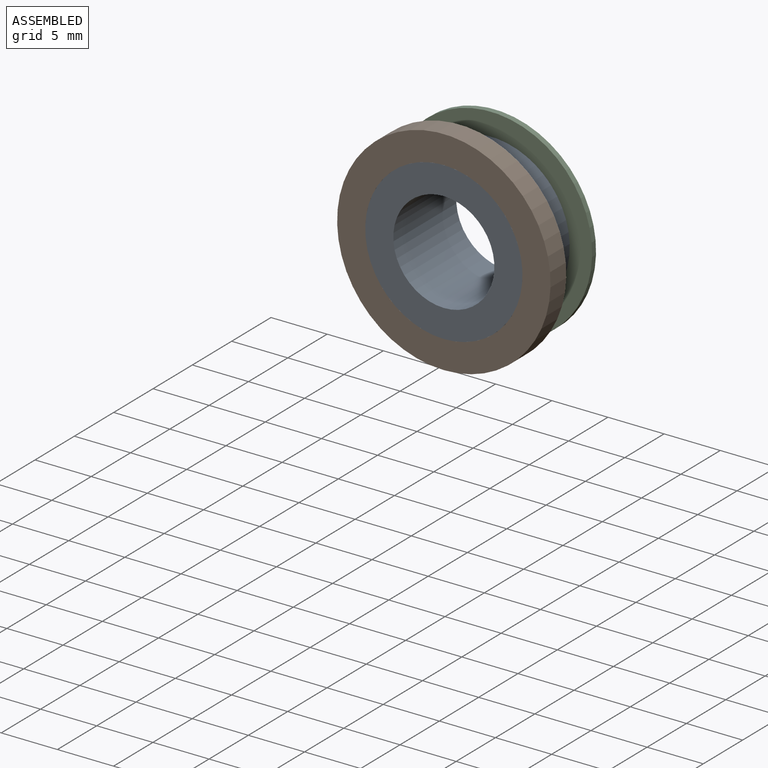
[diagram: assembled view]
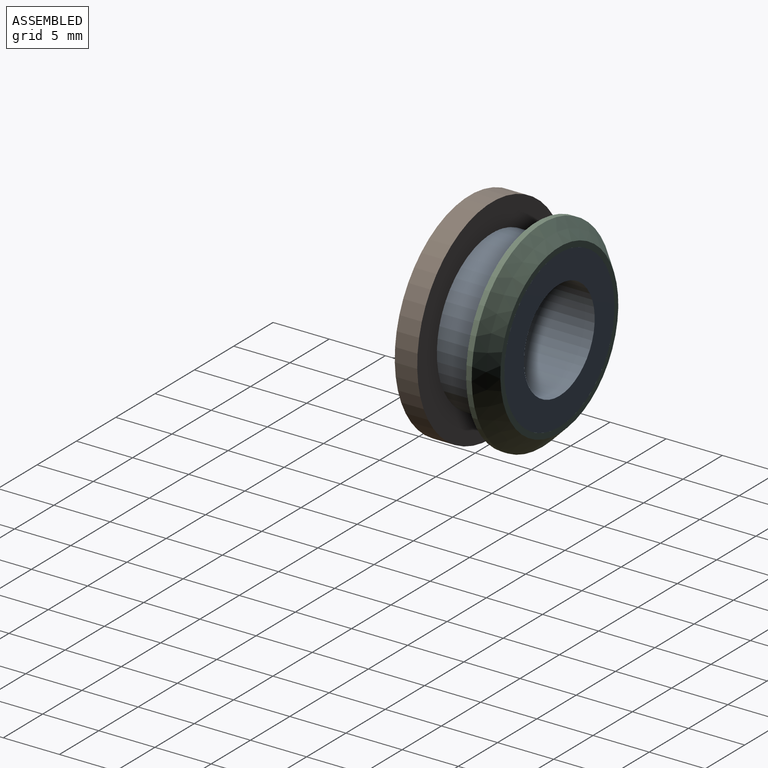
[diagram: assembled view, second angle]
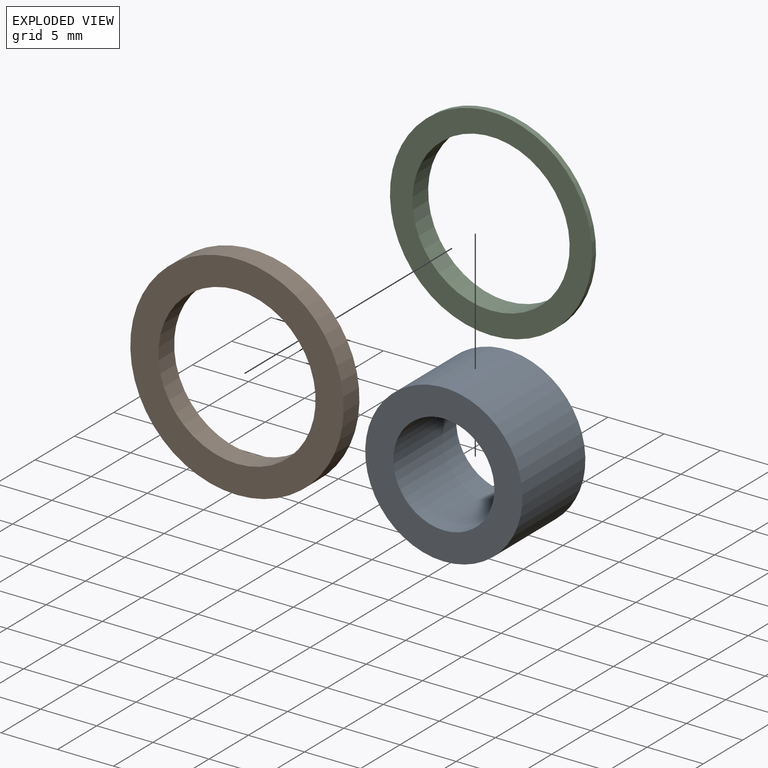
[diagram: exploded view]
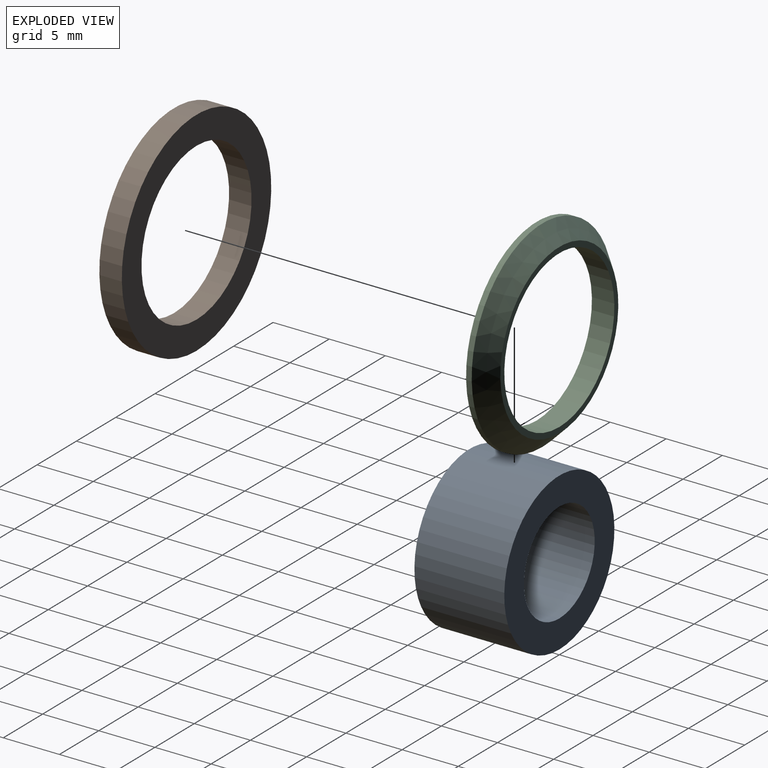
[diagram: exploded view, second angle]
ASSEMBLY  parts=3 mates=2
PART A: 4 faces, bbox 14x8x14 mm
  f0: cylinder r=4.5mm len=9mm, axis (0,1,0), area 226.2mm2, adj f2,f3
  f1: cylinder r=7mm len=14mm, axis (0,1,0), area 351.9mm2, adj f2,f3
  f2: plane 14x14mm, normal (0,-1,0), area 90.3mm2, adj f0,f1
  f3: plane 14x14mm, normal (0,1,0), area 90.3mm2, adj f0,f1
PART B: 4 faces, bbox 19x2x19 mm
  f0: cylinder r=7mm len=14mm, axis (0,-1,0), area 88mm2, adj f2,f3
  f1: cylinder r=9.5mm len=19mm, axis (0,-1,0), area 119.4mm2, adj f2,f3
  f2: plane 19x19mm, normal (0,1,0), area 129.6mm2, adj f0,f1
  f3: plane 19x19mm, normal (0,-1,0), area 129.6mm2, adj f0,f1
PART C: 5 faces, bbox 18x2x18 mm
  f0: cylinder r=7mm len=14mm, axis (0,1,0), area 88mm2, adj f2,f3
  f1: cylinder r=9mm len=18mm, axis (0,1,0), area 28.3mm2, adj f2,f4
  f2: plane 18x18mm, normal (0,-1,0), area 100.5mm2, adj f0,f1
  f3: plane 15x15mm, normal (0,1,0), area 22.8mm2, adj f0,f4
  f4: cone r=9mm half-angle=45deg, axis (0,-1,0), area 110mm2, adj f1,f3
PLACE A at identity
PLACE B t=(0,-8,0)mm
PLACE C at identity
MATE cylindrical C.f0 <-> A.f0  axis (0,1,0) through (0,0,0)mm
MATE fastened A.f0 <-> B.f0  axis (0,-1,0) through (0,-8,0)mm
